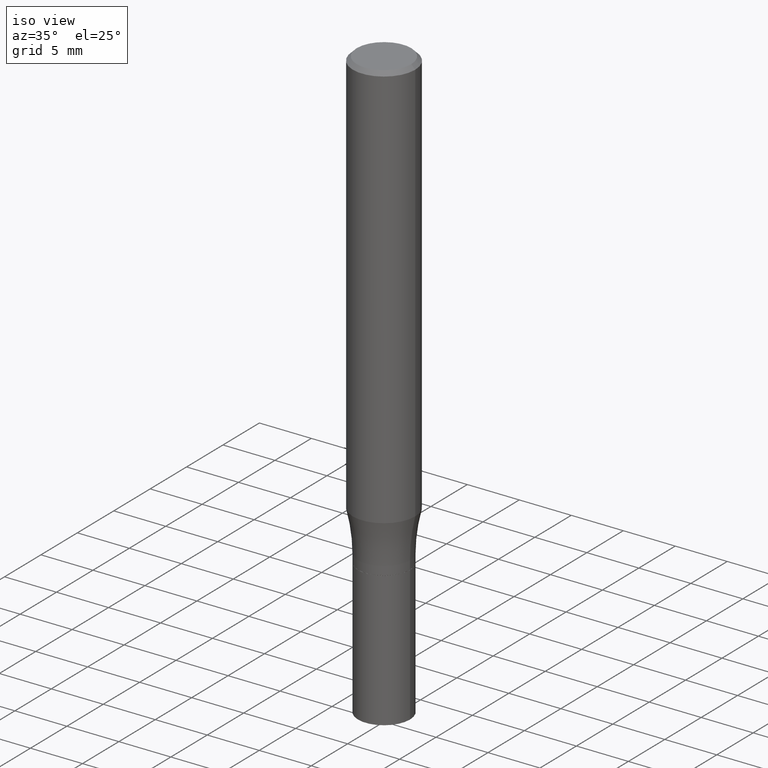
[diagram: clean part render]
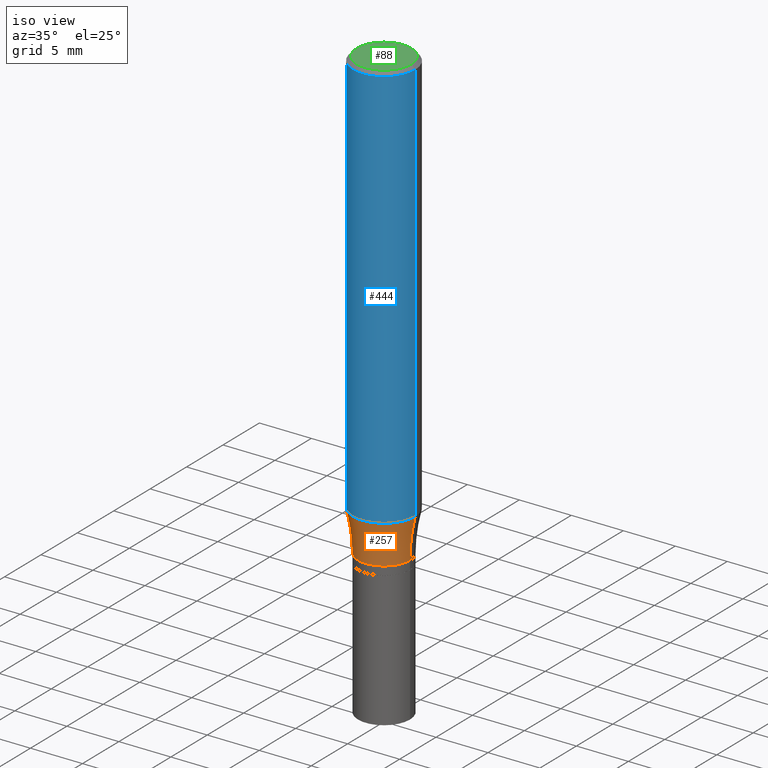
[diagram: same view with three faces highlighted in distinct colors, each labeled with its STEP entity id]
A machine part, iso view with three faces highlighted in distinct colors.
Their STEP definitions:

[orange] entity #257 — the highlighted toroidal blend (fillet) surface has major radius 18.3756 mm and minor (blend) radius 15.875 mm.
#10 = CARTESIAN_POINT ( 'NONE',  ( -0.1180999999999999966, -4.550343100563697850E-15, -1.543612452267068891 ) ) ;
#14 = CARTESIAN_POINT ( 'NONE',  ( 4.155096048589165620E-29, -5.932375942828387719E-15, -1.699099999999999833 ) ) ;
#27 = DIRECTION ( 'NONE',  ( -2.445468806185136597E-29, 3.491481338843145583E-15, 1.000000000000000000 ) ) ;
#34 = DIRECTION ( 'NONE',  ( -2.445468806185136597E-29, 3.491481338843145583E-15, 1.000000000000000000 ) ) ;
#57 = DIRECTION ( 'NONE',  ( 1.000000000000000000, -6.982962677686271444E-15, 0.000000000000000000 ) ) ;
#58 = VERTEX_POINT ( 'NONE', #249 ) ;
#77 = CIRCLE ( 'NONE', #80, 0.09844999999999963503 ) ;
#80 = AXIS2_PLACEMENT_3D ( 'NONE', #391, #27, #57 ) ;
#98 = AXIS2_PLACEMENT_3D ( 'NONE', #14, #379, #189 ) ;
#114 = DIRECTION ( 'NONE',  ( 1.000000000000000000, -6.982962677686265133E-15, 0.000000000000000000 ) ) ;
#116 = DIRECTION ( 'NONE',  ( -1.000000000000000000, 7.105427357601001859E-15, 0.000000000000000000 ) ) ;
#136 = CIRCLE ( 'NONE', #468, 0.6250000000000000000 ) ;
#140 = EDGE_CURVE ( 'NONE', #301, #58, #285, .T. ) ;
#176 = EDGE_CURVE ( 'NONE', #58, #450, #136, .T. ) ;
#189 = DIRECTION ( 'NONE',  ( 1.000000000000000000, -6.982962677686266711E-15, 4.883557194083112901E-29 ) ) ;
#192 = EDGE_LOOP ( 'NONE', ( #239, #240, #200, #385 ) ) ;
#200 = ORIENTED_EDGE ( 'NONE', *, *, #323, .T. ) ;
#206 = CARTESIAN_POINT ( 'NONE',  ( 3.774856100858060618E-29, -5.389494071496376836E-15, -1.543612452267068891 ) ) ;
#217 = TOROIDAL_SURFACE ( 'NONE', #98, 0.7234499999999995934, 0.6250000000000000000 ) ;
#228 = CARTESIAN_POINT ( 'NONE',  ( 0.09844999999999963503, -6.619848618446598701E-15, -1.699099999999999833 ) ) ;
#237 = EDGE_CURVE ( 'NONE', #301, #304, #287, .T. ) ;
#239 = ORIENTED_EDGE ( 'NONE', *, *, #140, .F. ) ;
#240 = ORIENTED_EDGE ( 'NONE', *, *, #237, .T. ) ;
#249 = CARTESIAN_POINT ( 'NONE',  ( 0.1180999999999999966, -6.214181963731125887E-15, -1.543612452267068891 ) ) ;
#257 = ADVANCED_FACE ( 'NONE', ( #435 ), #217, .F. ) ;
#285 = CIRCLE ( 'NONE', #451, 0.1181000000000000383 ) ;
#287 = CIRCLE ( 'NONE', #326, 0.6250000000000000000 ) ;
#301 = VERTEX_POINT ( 'NONE', #10 ) ;
#304 = VERTEX_POINT ( 'NONE', #434 ) ;
#319 = CARTESIAN_POINT ( 'NONE',  ( 0.7234499999999995934, -1.098420029200051540E-14, -1.699099999999999833 ) ) ;
#323 = EDGE_CURVE ( 'NONE', #304, #450, #77, .T. ) ;
#326 = AXIS2_PLACEMENT_3D ( 'NONE', #403, #328, #116 ) ;
#328 = DIRECTION ( 'NONE',  ( 7.105427357601001859E-15, 1.000000000000000000, -3.491481338843145583E-15 ) ) ;
#333 = DIRECTION ( 'NONE',  ( -6.982962677686266711E-15, -1.000000000000000000, 3.491481338843145583E-15 ) ) ;
#362 = DIRECTION ( 'NONE',  ( 1.000000000000000000, -6.982962677686270655E-15, 0.000000000000000000 ) ) ;
#379 = DIRECTION ( 'NONE',  ( -2.445468806185136597E-29, 3.491481338843145583E-15, 1.000000000000000000 ) ) ;
#385 = ORIENTED_EDGE ( 'NONE', *, *, #176, .F. ) ;
#391 = CARTESIAN_POINT ( 'NONE',  ( 4.155096048589165620E-29, -5.932375942828387719E-15, -1.699099999999999833 ) ) ;
#403 = CARTESIAN_POINT ( 'NONE',  ( -0.7234499999999995934, -7.919545209719458135E-16, -1.699099999999999833 ) ) ;
#434 = CARTESIAN_POINT ( 'NONE',  ( -0.09844999999999963503, -4.891594860018134518E-15, -1.699099999999999833 ) ) ;
#435 = FACE_OUTER_BOUND ( 'NONE', #192, .T. ) ;
#450 = VERTEX_POINT ( 'NONE', #228 ) ;
#451 = AXIS2_PLACEMENT_3D ( 'NONE', #206, #34, #362 ) ;
#468 = AXIS2_PLACEMENT_3D ( 'NONE', #319, #333, #114 ) ;

[blue] entity #444 — the highlighted cylindrical surface (partial cylindrical patch) has radius 2.9997 mm, axis along (-0, 0, 1).
#10 = CARTESIAN_POINT ( 'NONE',  ( -0.1180999999999999966, -4.550343100563697850E-15, -1.543612452267068891 ) ) ;
#34 = DIRECTION ( 'NONE',  ( -2.445468806185136597E-29, 3.491481338843145583E-15, 1.000000000000000000 ) ) ;
#38 = CARTESIAN_POINT ( 'NONE',  ( 0.000000000000000000, 0.000000000000000000, 0.000000000000000000 ) ) ;
#41 = EDGE_CURVE ( 'NONE', #301, #456, #90, .T. ) ;
#58 = VERTEX_POINT ( 'NONE', #249 ) ;
#59 = CIRCLE ( 'NONE', #425, 0.1180999999999999966 ) ;
#60 = AXIS2_PLACEMENT_3D ( 'NONE', #38, #76, #289 ) ;
#70 = VECTOR ( 'NONE', #238, 39.37007874015748143 ) ;
#76 = DIRECTION ( 'NONE',  ( -2.445468806185136597E-29, 3.491481338843145583E-15, 1.000000000000000000 ) ) ;
#90 = LINE ( 'NONE', #199, #70 ) ;
#92 = ORIENTED_EDGE ( 'NONE', *, *, #303, .F. ) ;
#109 = FACE_OUTER_BOUND ( 'NONE', #343, .T. ) ;
#139 = DIRECTION ( 'NONE',  ( 1.000000000000000000, -6.982962677686266711E-15, 0.000000000000000000 ) ) ;
#140 = EDGE_CURVE ( 'NONE', #301, #58, #285, .T. ) ;
#148 = CARTESIAN_POINT ( 'NONE',  ( 0.1181000000000000105, -8.246878922347482626E-16, 5.758764772215001141E-30 ) ) ;
#175 = DIRECTION ( 'NONE',  ( -2.445468806185136597E-29, 3.491481338843145583E-15, 1.000000000000000000 ) ) ;
#182 = DIRECTION ( 'NONE',  ( -2.445468806185136877E-29, 3.491481338843145188E-15, 1.000000000000000000 ) ) ;
#188 = EDGE_CURVE ( 'NONE', #58, #423, #218, .T. ) ;
#199 = CARTESIAN_POINT ( 'NONE',  ( -0.1181000000000000105, 8.391509709326783943E-16, -5.809262341591044484E-30 ) ) ;
#206 = CARTESIAN_POINT ( 'NONE',  ( 3.774856100858060618E-29, -5.389494071496376836E-15, -1.543612452267068891 ) ) ;
#208 = ORIENTED_EDGE ( 'NONE', *, *, #140, .T. ) ;
#218 = LINE ( 'NONE', #148, #367 ) ;
#222 = CARTESIAN_POINT ( 'NONE',  ( 0.1180999999999999966, -8.625970336194650129E-16, -0.01499999999999999944 ) ) ;
#238 = DIRECTION ( 'NONE',  ( -2.445468806185136877E-29, 3.491481338843145188E-15, 1.000000000000000000 ) ) ;
#249 = CARTESIAN_POINT ( 'NONE',  ( 0.1180999999999999966, -6.214181963731125887E-15, -1.543612452267068891 ) ) ;
#285 = CIRCLE ( 'NONE', #451, 0.1181000000000000383 ) ;
#289 = DIRECTION ( 'NONE',  ( 1.000000000000000000, -6.982962677686267499E-15, 4.876176775795936353E-29 ) ) ;
#301 = VERTEX_POINT ( 'NONE', #10 ) ;
#303 = EDGE_CURVE ( 'NONE', #456, #423, #59, .T. ) ;
#330 = CYLINDRICAL_SURFACE ( 'NONE', #60, 0.1181000000000000105 ) ;
#343 = EDGE_LOOP ( 'NONE', ( #416, #208, #346, #92 ) ) ;
#346 = ORIENTED_EDGE ( 'NONE', *, *, #188, .T. ) ;
#362 = DIRECTION ( 'NONE',  ( 1.000000000000000000, -6.982962677686270655E-15, 0.000000000000000000 ) ) ;
#367 = VECTOR ( 'NONE', #182, 39.37007874015748143 ) ;
#416 = ORIENTED_EDGE ( 'NONE', *, *, #41, .F. ) ;
#423 = VERTEX_POINT ( 'NONE', #222 ) ;
#425 = AXIS2_PLACEMENT_3D ( 'NONE', #428, #175, #139 ) ;
#428 = CARTESIAN_POINT ( 'NONE',  ( 3.668203209277705088E-31, -5.237222008264718399E-17, -0.01499999999999999944 ) ) ;
#442 = CARTESIAN_POINT ( 'NONE',  ( -0.1180999999999999966, 7.723156721521009862E-16, -0.01499999999999999944 ) ) ;
#444 = ADVANCED_FACE ( 'NONE', ( #109 ), #330, .T. ) ;
#451 = AXIS2_PLACEMENT_3D ( 'NONE', #206, #34, #362 ) ;
#456 = VERTEX_POINT ( 'NONE', #442 ) ;

[green] entity #88 — the highlighted planar face has unit normal (0, -0, -1).
#39 = VERTEX_POINT ( 'NONE', #171 ) ;
#42 = FACE_OUTER_BOUND ( 'NONE', #197, .T. ) ;
#64 = CIRCLE ( 'NONE', #329, 0.1031000000000000111 ) ;
#65 = DIRECTION ( 'NONE',  ( -2.445468806185136597E-29, 3.491481338843145583E-15, 1.000000000000000000 ) ) ;
#75 = DIRECTION ( 'NONE',  ( 2.438088387897960049E-29, -3.491481338843145188E-15, -1.000000000000000000 ) ) ;
#88 = ADVANCED_FACE ( 'NONE', ( #42 ), #115, .F. ) ;
#97 = ORIENTED_EDGE ( 'NONE', *, *, #467, .T. ) ;
#115 = PLANE ( 'NONE',  #179 ) ;
#169 = CIRCLE ( 'NONE', #180, 0.1031000000000000111 ) ;
#171 = CARTESIAN_POINT ( 'NONE',  ( 0.1031000000000000111, -7.849571885948555664E-16, -3.585672687244918133E-16 ) ) ;
#179 = AXIS2_PLACEMENT_3D ( 'NONE', #406, #75, #455 ) ;
#180 = AXIS2_PLACEMENT_3D ( 'NONE', #441, #65, #315 ) ;
#181 = DIRECTION ( 'NONE',  ( -2.445468806185136597E-29, 3.491481338843145583E-15, 1.000000000000000000 ) ) ;
#197 = EDGE_LOOP ( 'NONE', ( #392, #97 ) ) ;
#258 = DIRECTION ( 'NONE',  ( 1.000000000000000000, -6.982962677686265922E-15, 4.883331232093008327E-29 ) ) ;
#315 = DIRECTION ( 'NONE',  ( 1.000000000000000000, -6.982962677686265922E-15, 4.883331232093008327E-29 ) ) ;
#329 = AXIS2_PLACEMENT_3D ( 'NONE', #370, #181, #258 ) ;
#370 = CARTESIAN_POINT ( 'NONE',  ( 8.768650705847610599E-45, -1.251930927471537114E-30, -3.585672687244970888E-16 ) ) ;
#371 = EDGE_CURVE ( 'NONE', #460, #39, #169, .T. ) ;
#392 = ORIENTED_EDGE ( 'NONE', *, *, #371, .T. ) ;
#401 = CARTESIAN_POINT ( 'NONE',  ( -0.1031000000000000111, 7.461295621107768549E-16, -3.585672687245022657E-16 ) ) ;
#406 = CARTESIAN_POINT ( 'NONE',  ( 7.199434520694541042E-16, 0.1031000000000000111, -5.392553603969768538E-16 ) ) ;
#441 = CARTESIAN_POINT ( 'NONE',  ( 8.768650705847610599E-45, -1.251930927471537114E-30, -3.585672687244970888E-16 ) ) ;
#455 = DIRECTION ( 'NONE',  ( -1.000000000000000000, 6.982962677686265922E-15, -4.876176775795935793E-29 ) ) ;
#460 = VERTEX_POINT ( 'NONE', #401 ) ;
#467 = EDGE_CURVE ( 'NONE', #39, #460, #64, .T. ) ;